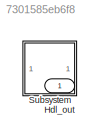
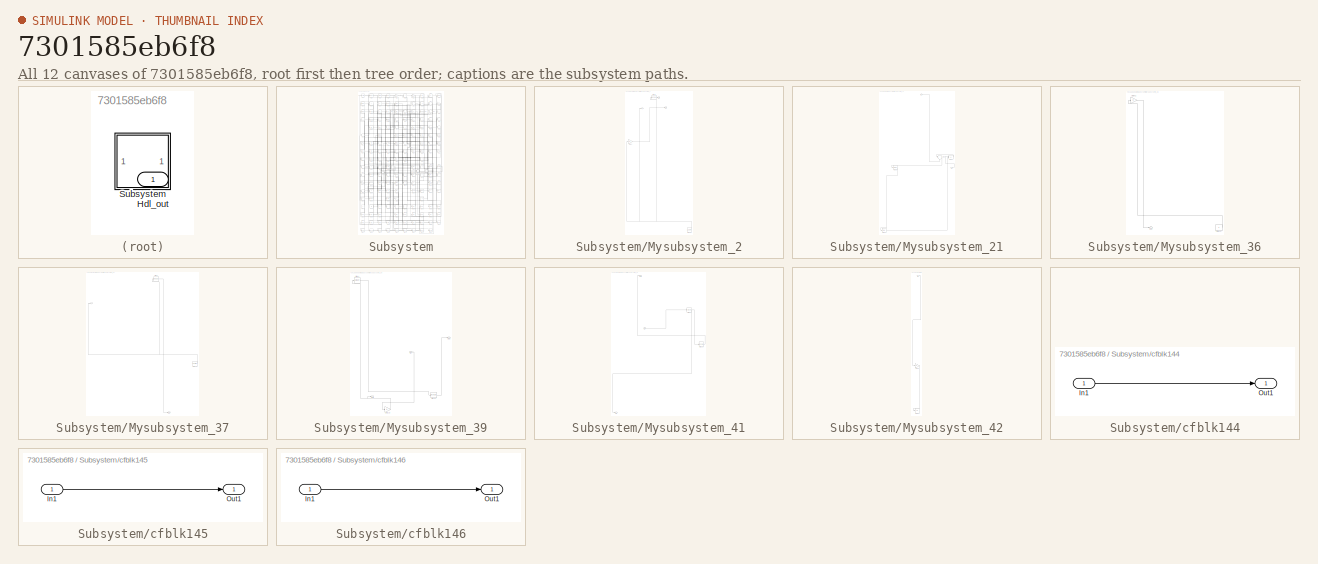
[diagram: thumbnail index - all 12 canvases of the model, root first then tree order]
MODEL slx_7301585eb6f8
KIND model
CONFIG AbsTol = auto
CONFIG EnableMultiTasking = off
CONFIG FixedStep = auto
CONFIG MaxStep = auto
CONFIG MinStep = auto
CONFIG RelTol = 1e-3
CONFIG SampleTimeConstraint = Unconstrained
CONFIG SolverName = VariableStepAuto
CONFIG StartTime = 0.0
CONFIG StopTime = 10.0
BLOCK [Outport] Hdl_out
  OutDataTypeStr = uint8
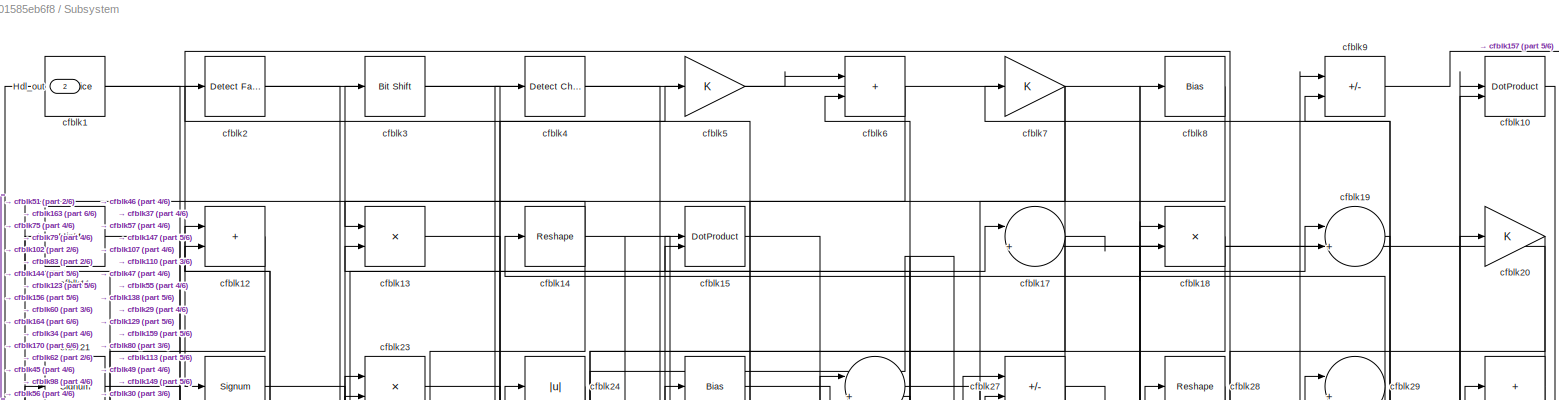
[diagram: Subsystem - part 1/6, full width, top band]
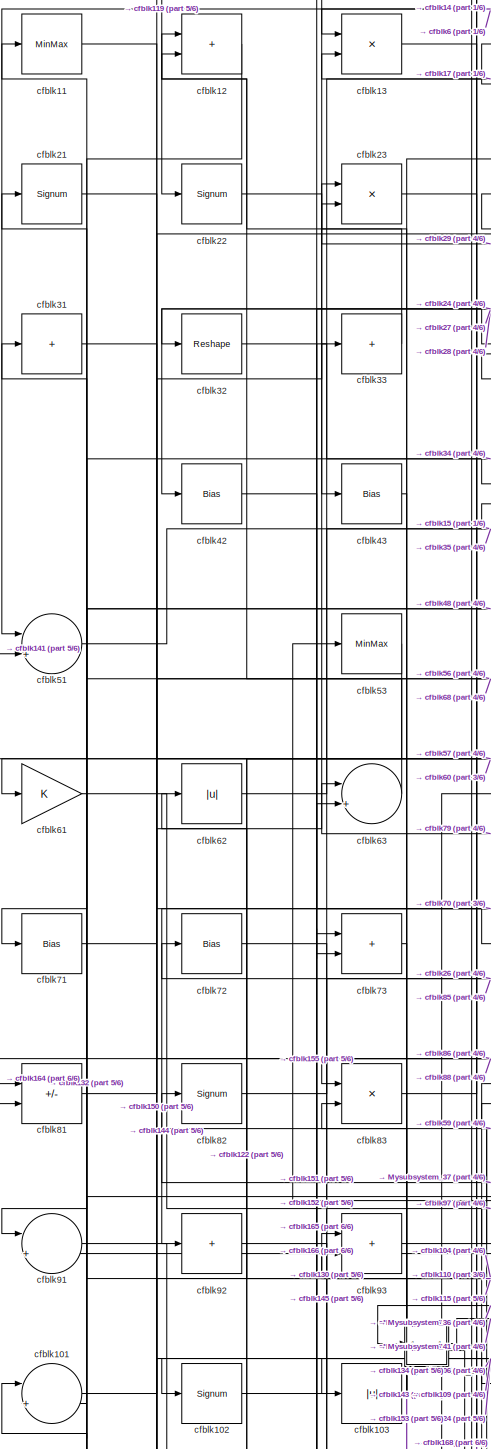
[diagram: Subsystem - part 2/6, middle left region]
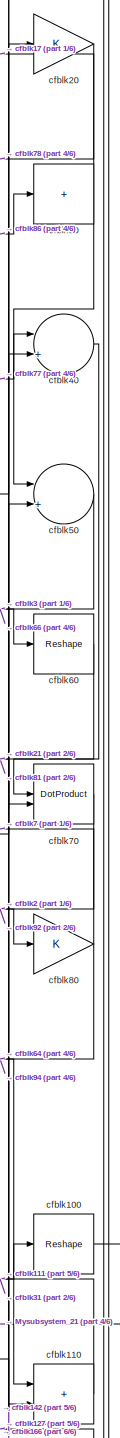
[diagram: Subsystem - part 3/6, middle right region]
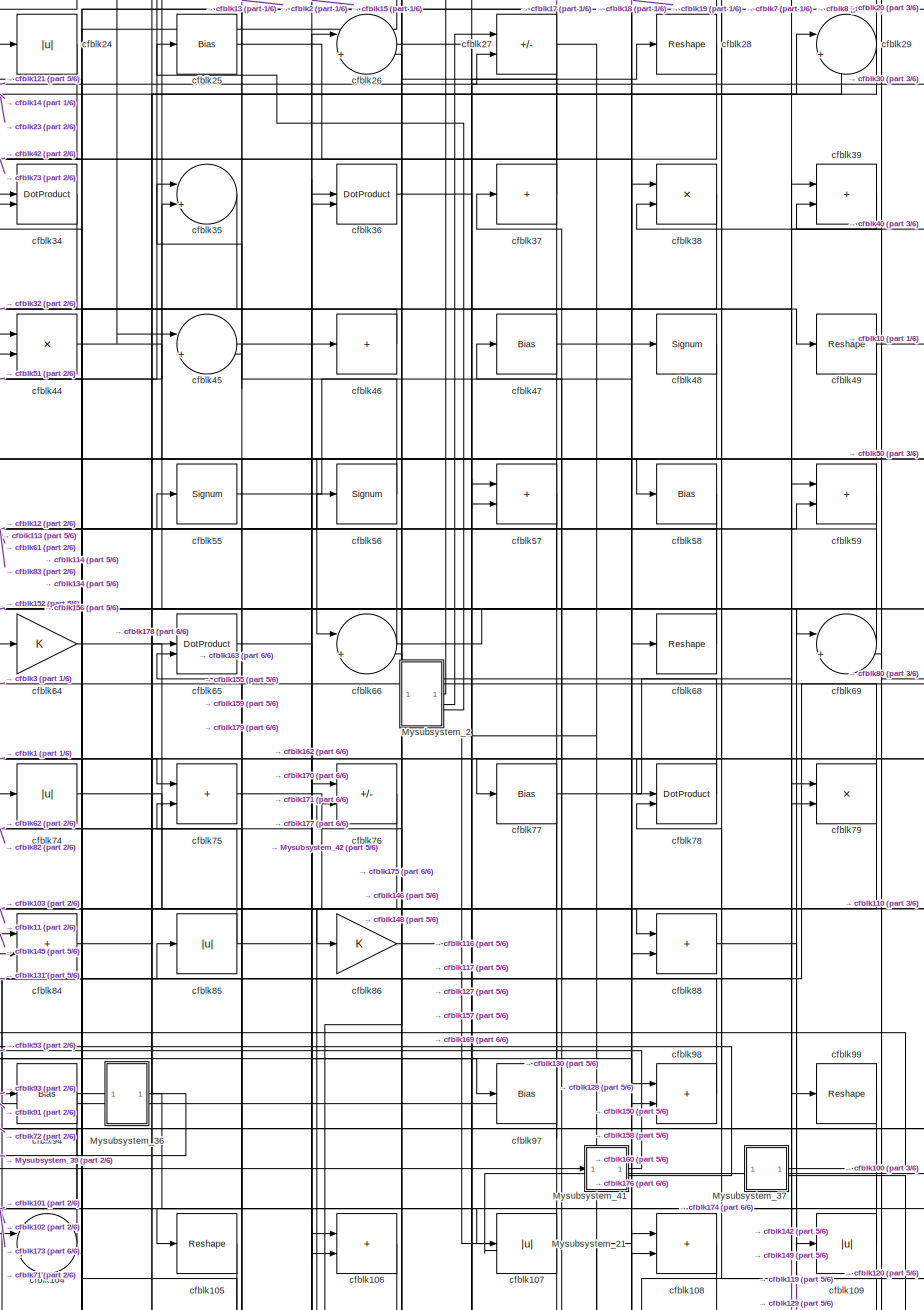
[diagram: Subsystem - part 4/6, central region]
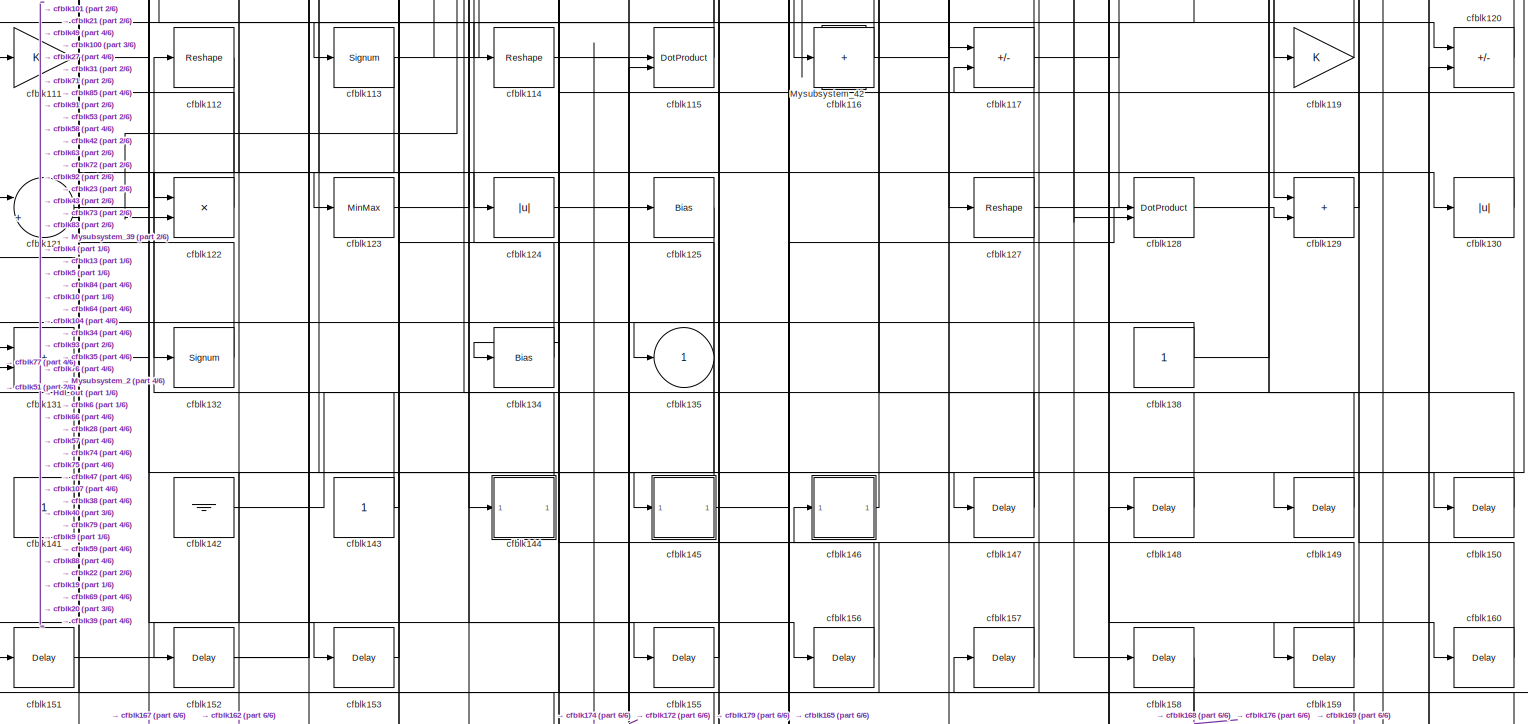
[diagram: Subsystem - part 5/6, full width, bottom band]
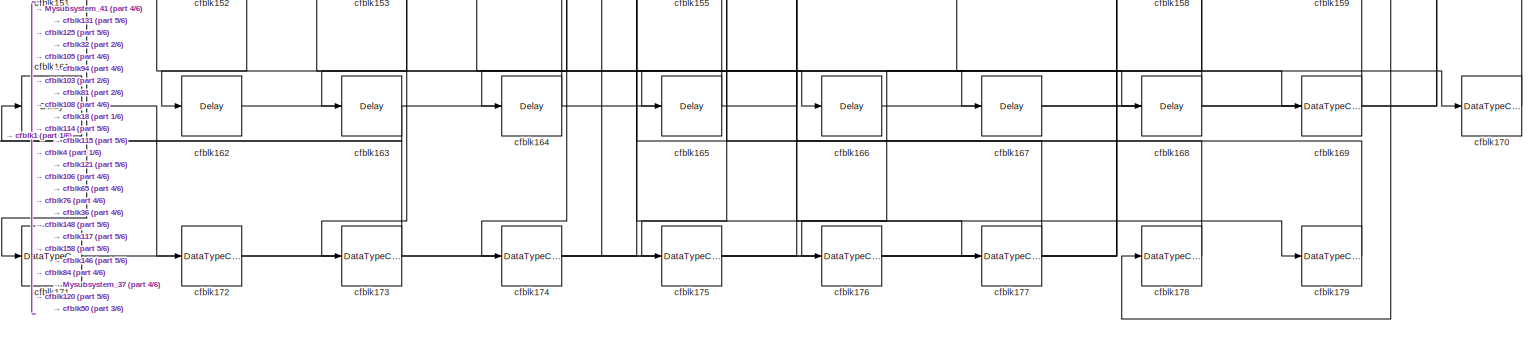
[diagram: Subsystem - part 6/6, full width, bottom band]
BLOCK [SubSystem] Subsystem
BLOCK [Outport] Subsystem/Hdl_out
  OutDataTypeStr = uint8
  Port = 2
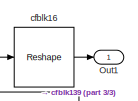
[diagram: Subsystem/Mysubsystem_2 - part 1/3, top center region]
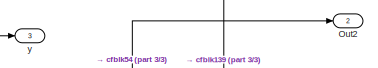
[diagram: Subsystem/Mysubsystem_2 - part 2/3, top center region]
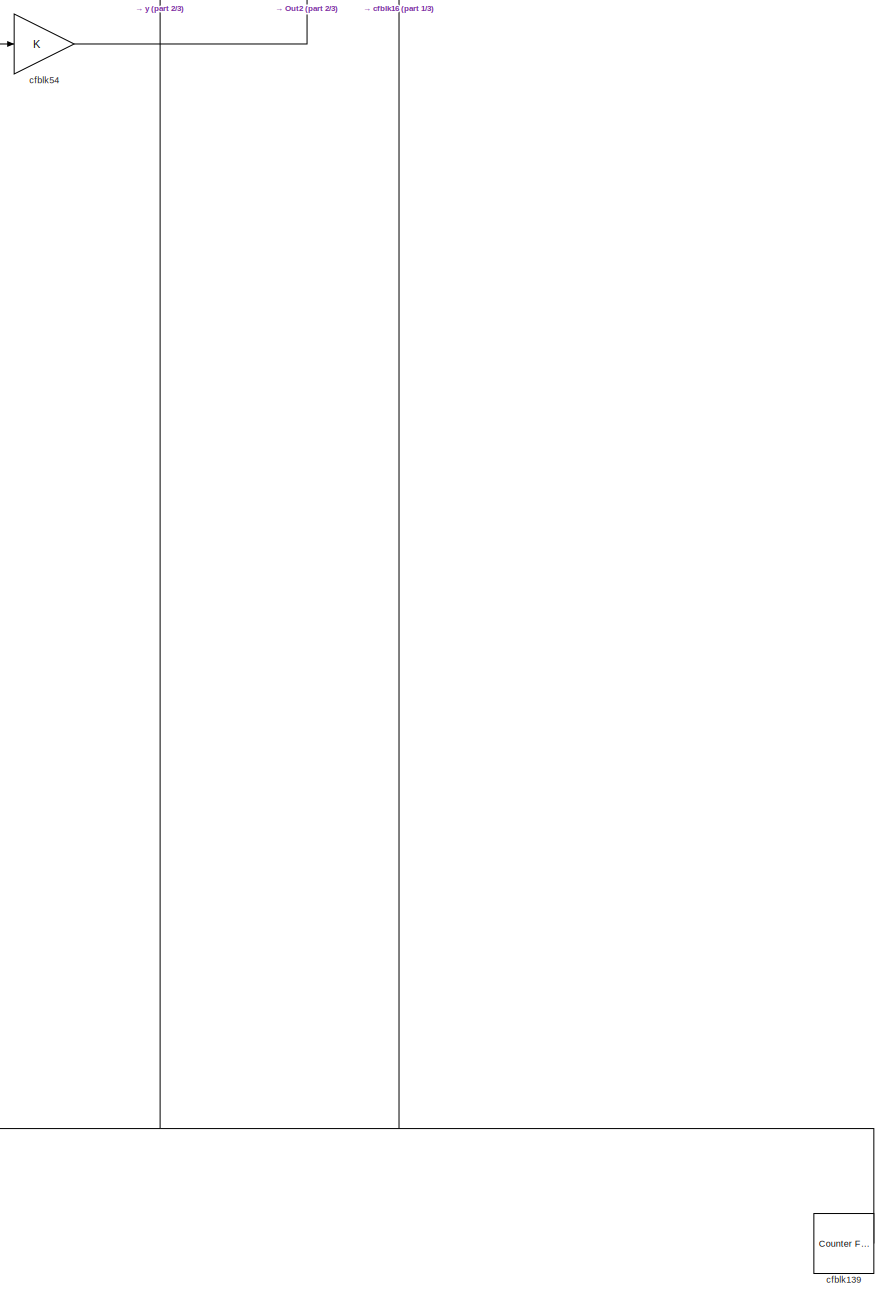
[diagram: Subsystem/Mysubsystem_2 - part 3/3, full width, middle band]
BLOCK [SubSystem] Subsystem/Mysubsystem_2
  RTWFcnName = Mysubsystem_2
  RTWFcnNameOpts = User specified
  RTWFileNameOpts = Use function name
  RTWSystemCode = Reusable function
  TreatAsAtomicUnit = on
BLOCK [Outport] Subsystem/Mysubsystem_2/Out1
BLOCK [Outport] Subsystem/Mysubsystem_2/Out2
  Port = 2
BLOCK [Reference] Subsystem/Mysubsystem_2/cfblk139  REF=hdlsllib/Sources/Counter
Free-Running
  SourceBlock = hdlsllib/Sources/Counter\nFree-Running
  SourceType = Counter Free-Running
BLOCK [Reshape] Subsystem/Mysubsystem_2/cfblk16
BLOCK [Gain] Subsystem/Mysubsystem_2/cfblk54
BLOCK [Outport] Subsystem/Mysubsystem_2/y
  Port = 3
BLOCK [SubSystem] Subsystem/Mysubsystem_21
  RTWFcnName = Mysubsystem_21
  RTWFcnNameOpts = User specified
  RTWFileNameOpts = Use function name
  RTWSystemCode = Reusable function
  TreatAsAtomicUnit = on
BLOCK [Inport] Subsystem/Mysubsystem_21/In1
BLOCK [Inport] Subsystem/Mysubsystem_21/In2
  Port = 2
BLOCK [Delay] Subsystem/Mysubsystem_21/cfblk154
  InputPortMap = u0
  SampleTime = 1
BLOCK [Sum] Subsystem/Mysubsystem_21/cfblk89
  Inputs = |++
BLOCK [Sum] Subsystem/Mysubsystem_21/cfblk90
  IconShape = rectangular
  Inputs = +-
BLOCK [MinMax] Subsystem/Mysubsystem_21/cfblk95
BLOCK [SubSystem] Subsystem/Mysubsystem_36
  RTWFcnName = Mysubsystem_36
  RTWFcnNameOpts = User specified
  RTWFileNameOpts = Use function name
  RTWSystemCode = Reusable function
  TreatAsAtomicUnit = on
BLOCK [Outport] Subsystem/Mysubsystem_36/Out1
BLOCK [Constant] Subsystem/Mysubsystem_36/cfblk137
  SampleTime = -1
BLOCK [Gain] Subsystem/Mysubsystem_36/cfblk52
BLOCK [SubSystem] Subsystem/Mysubsystem_37
  RTWFcnName = Mysubsystem_37
  RTWFcnNameOpts = User specified
  RTWFileNameOpts = Use function name
  RTWSystemCode = Reusable function
  TreatAsAtomicUnit = on
BLOCK [Outport] Subsystem/Mysubsystem_37/Out2
  Port = 2
BLOCK [Reference] Subsystem/Mysubsystem_37/cfblk140  REF=hdlsllib/Sources/Counter
Free-Running
  SourceBlock = hdlsllib/Sources/Counter\nFree-Running
  SourceType = Counter Free-Running
BLOCK [Reshape] Subsystem/Mysubsystem_37/cfblk67
BLOCK [Outport] Subsystem/Mysubsystem_37/y
BLOCK [SubSystem] Subsystem/Mysubsystem_39
  RTWFcnName = Mysubsystem_39
  RTWFcnNameOpts = User specified
  RTWFileNameOpts = Use function name
  RTWSystemCode = Reusable function
  TreatAsAtomicUnit = on
BLOCK [Inport] Subsystem/Mysubsystem_39/In1
BLOCK [Outport] Subsystem/Mysubsystem_39/Out1
BLOCK [Outport] Subsystem/Mysubsystem_39/Out2
  Port = 2
BLOCK [Reshape] Subsystem/Mysubsystem_39/cfblk126
BLOCK [Gain] Subsystem/Mysubsystem_39/cfblk133
BLOCK [Signum] Subsystem/Mysubsystem_39/cfblk41
BLOCK [SubSystem] Subsystem/Mysubsystem_41
  RTWFcnName = Mysubsystem_41
  RTWFcnNameOpts = User specified
  RTWFileNameOpts = Use function name
  RTWSystemCode = Reusable function
  TreatAsAtomicUnit = on
BLOCK [Inport] Subsystem/Mysubsystem_41/In1
BLOCK [Outport] Subsystem/Mysubsystem_41/Out1
BLOCK [Outport] Subsystem/Mysubsystem_41/Out2
  Port = 2
BLOCK [Reshape] Subsystem/Mysubsystem_41/cfblk118
BLOCK [Signum] Subsystem/Mysubsystem_41/cfblk87
BLOCK [SubSystem] Subsystem/Mysubsystem_42
  RTWFcnName = Mysubsystem_42
  RTWFcnNameOpts = User specified
  RTWFileNameOpts = Use function name
  RTWSystemCode = Reusable function
  TreatAsAtomicUnit = on
BLOCK [Inport] Subsystem/Mysubsystem_42/In1
BLOCK [Display] Subsystem/Mysubsystem_42/cfblk136
  Decimation = 1
BLOCK [Gain] Subsystem/Mysubsystem_42/cfblk96
BLOCK [Reference] Subsystem/cfblk1  REF=hdlsllib/Logic and Bit
Operations/Bit Slice
  SourceBlock = hdlsllib/Logic and Bit\nOperations/Bit Slice
  SourceType = Bit Slice
BLOCK [DotProduct] Subsystem/cfblk10
  OutDataTypeStr = uint8
BLOCK [Reshape] Subsystem/cfblk100
BLOCK [Sum] Subsystem/cfblk101
  Inputs = |++
  OutDataTypeStr = uint8
BLOCK [Signum] Subsystem/cfblk102
BLOCK [Abs] Subsystem/cfblk103
  OutDataTypeStr = uint8
  SaturateOnIntegerOverflow = off
BLOCK [Sum] Subsystem/cfblk104
  Inputs = |++
  OutDataTypeStr = uint8
BLOCK [Reshape] Subsystem/cfblk105
BLOCK [Sum] Subsystem/cfblk106
  IconShape = rectangular
  OutDataTypeStr = uint8
BLOCK [Abs] Subsystem/cfblk107
  OutDataTypeStr = uint8
  SaturateOnIntegerOverflow = off
BLOCK [Sum] Subsystem/cfblk108
  IconShape = rectangular
  OutDataTypeStr = uint8
BLOCK [Abs] Subsystem/cfblk109
  OutDataTypeStr = uint8
  SaturateOnIntegerOverflow = off
BLOCK [MinMax] Subsystem/cfblk11
  OutDataTypeStr = uint8
BLOCK [Sum] Subsystem/cfblk110
  IconShape = rectangular
  OutDataTypeStr = uint8
BLOCK [Gain] Subsystem/cfblk111
  OutDataTypeStr = uint8
BLOCK [Reshape] Subsystem/cfblk112
BLOCK [Signum] Subsystem/cfblk113
BLOCK [Reshape] Subsystem/cfblk114
BLOCK [DotProduct] Subsystem/cfblk115
  OutDataTypeStr = uint8
BLOCK [Sum] Subsystem/cfblk116
  IconShape = rectangular
  Inputs = +
  OutDataTypeStr = uint8
BLOCK [Sum] Subsystem/cfblk117
  IconShape = rectangular
  Inputs = +-
  OutDataTypeStr = uint8
BLOCK [Gain] Subsystem/cfblk119
  OutDataTypeStr = uint8
BLOCK [Sum] Subsystem/cfblk12
  IconShape = rectangular
  OutDataTypeStr = uint8
BLOCK [Sum] Subsystem/cfblk120
  IconShape = rectangular
  Inputs = +-
  OutDataTypeStr = uint8
BLOCK [Sum] Subsystem/cfblk121
  Inputs = |++
  OutDataTypeStr = uint8
BLOCK [Product] Subsystem/cfblk122
  Inputs = */
  OutDataTypeStr = uint8
  RndMeth = Zero
  SaturateOnIntegerOverflow = on
BLOCK [MinMax] Subsystem/cfblk123
  OutDataTypeStr = uint8
BLOCK [Abs] Subsystem/cfblk124
  OutDataTypeStr = uint8
  SaturateOnIntegerOverflow = off
BLOCK [Bias] Subsystem/cfblk125
  Bias = 0.0
  SaturateOnIntegerOverflow = off
BLOCK [Reshape] Subsystem/cfblk127
BLOCK [DotProduct] Subsystem/cfblk128
  OutDataTypeStr = uint8
BLOCK [Sum] Subsystem/cfblk129
  IconShape = rectangular
  OutDataTypeStr = uint8
BLOCK [Product] Subsystem/cfblk13
  Inputs = */
  OutDataTypeStr = uint8
  RndMeth = Zero
  SaturateOnIntegerOverflow = on
BLOCK [Abs] Subsystem/cfblk130
  OutDataTypeStr = uint8
  SaturateOnIntegerOverflow = off
BLOCK [Sum] Subsystem/cfblk131
  IconShape = rectangular
  OutDataTypeStr = uint8
BLOCK [Signum] Subsystem/cfblk132
BLOCK [Bias] Subsystem/cfblk134
  Bias = 0.0
  SaturateOnIntegerOverflow = off
BLOCK [Outport] Subsystem/cfblk135
  OutDataTypeStr = uint8
  VectorParamsAs1DForOutWhenUnconnected = off
BLOCK [Constant] Subsystem/cfblk138
  OutDataTypeStr = uint8
  SampleTime = -1
BLOCK [Reshape] Subsystem/cfblk14
BLOCK [Constant] Subsystem/cfblk141
  OutDataTypeStr = uint8
  SampleTime = -1
BLOCK [Ground] Subsystem/cfblk142
BLOCK [Constant] Subsystem/cfblk143
  OutDataTypeStr = uint8
  SampleTime = -1
BLOCK [SubSystem] Subsystem/cfblk144
  LibrarySourceBlock = hdlsllib/Ports &\nSubsystems/Subsystem
BLOCK [Inport] Subsystem/cfblk144/In1
BLOCK [Outport] Subsystem/cfblk144/Out1
BLOCK [SubSystem] Subsystem/cfblk145
  LibrarySourceBlock = hdlsllib/Ports &\nSubsystems/Subsystem
BLOCK [Inport] Subsystem/cfblk145/In1
BLOCK [Outport] Subsystem/cfblk145/Out1
BLOCK [SubSystem] Subsystem/cfblk146
  LibrarySourceBlock = hdlsllib/Ports &\nSubsystems/Subsystem
BLOCK [Inport] Subsystem/cfblk146/In1
BLOCK [Outport] Subsystem/cfblk146/Out1
BLOCK [Delay] Subsystem/cfblk147
  InputPortMap = u0
  SampleTime = 1
BLOCK [Delay] Subsystem/cfblk148
  InputPortMap = u0
  SampleTime = 1
BLOCK [Delay] Subsystem/cfblk149
  InputPortMap = u0
  SampleTime = 1
BLOCK [DotProduct] Subsystem/cfblk15
  OutDataTypeStr = uint8
BLOCK [Delay] Subsystem/cfblk150
  InputPortMap = u0
  SampleTime = 1
BLOCK [Delay] Subsystem/cfblk151
  InputPortMap = u0
  SampleTime = 1
BLOCK [Delay] Subsystem/cfblk152
  InputPortMap = u0
  SampleTime = 1
BLOCK [Delay] Subsystem/cfblk153
  InputPortMap = u0
  SampleTime = 1
BLOCK [Delay] Subsystem/cfblk155
  InputPortMap = u0
  SampleTime = 1
BLOCK [Delay] Subsystem/cfblk156
  InputPortMap = u0
  SampleTime = 1
BLOCK [Delay] Subsystem/cfblk157
  InputPortMap = u0
  SampleTime = 1
BLOCK [Delay] Subsystem/cfblk158
  InputPortMap = u0
  SampleTime = 1
BLOCK [Delay] Subsystem/cfblk159
  InputPortMap = u0
  SampleTime = 1
BLOCK [Delay] Subsystem/cfblk160
  InputPortMap = u0
  SampleTime = 1
BLOCK [Delay] Subsystem/cfblk161
  InputPortMap = u0
  SampleTime = 1
BLOCK [Delay] Subsystem/cfblk162
  InputPortMap = u0
  SampleTime = 1
BLOCK [Delay] Subsystem/cfblk163
  InputPortMap = u0
  SampleTime = 1
BLOCK [Delay] Subsystem/cfblk164
  InputPortMap = u0
  SampleTime = 1
BLOCK [Delay] Subsystem/cfblk165
  InputPortMap = u0
  SampleTime = 1
BLOCK [Delay] Subsystem/cfblk166
  InputPortMap = u0
  SampleTime = 1
BLOCK [Delay] Subsystem/cfblk167
  InputPortMap = u0
  SampleTime = 1
BLOCK [Delay] Subsystem/cfblk168
  InputPortMap = u0
  SampleTime = 1
BLOCK [DataTypeConversion] Subsystem/cfblk169
  OutDataTypeStr = uint8
  RndMeth = Floor
  SaturateOnIntegerOverflow = off
BLOCK [Sum] Subsystem/cfblk17
  Inputs = |++
  OutDataTypeStr = uint8
BLOCK [DataTypeConversion] Subsystem/cfblk170
  OutDataTypeStr = uint8
  RndMeth = Floor
  SaturateOnIntegerOverflow = off
BLOCK [DataTypeConversion] Subsystem/cfblk171
  OutDataTypeStr = uint8
  RndMeth = Floor
  SaturateOnIntegerOverflow = off
BLOCK [DataTypeConversion] Subsystem/cfblk172
  OutDataTypeStr = uint8
  RndMeth = Floor
  SaturateOnIntegerOverflow = off
BLOCK [DataTypeConversion] Subsystem/cfblk173
  OutDataTypeStr = uint8
  RndMeth = Floor
  SaturateOnIntegerOverflow = off
BLOCK [DataTypeConversion] Subsystem/cfblk174
  OutDataTypeStr = uint8
  RndMeth = Floor
  SaturateOnIntegerOverflow = off
BLOCK [DataTypeConversion] Subsystem/cfblk175
  OutDataTypeStr = uint8
  RndMeth = Floor
  SaturateOnIntegerOverflow = off
BLOCK [DataTypeConversion] Subsystem/cfblk176
  OutDataTypeStr = uint8
  RndMeth = Floor
  SaturateOnIntegerOverflow = off
BLOCK [DataTypeConversion] Subsystem/cfblk177
  OutDataTypeStr = uint8
  RndMeth = Floor
  SaturateOnIntegerOverflow = off
BLOCK [DataTypeConversion] Subsystem/cfblk178
  OutDataTypeStr = uint8
  RndMeth = Floor
  SaturateOnIntegerOverflow = off
BLOCK [DataTypeConversion] Subsystem/cfblk179
  OutDataTypeStr = uint8
  RndMeth = Floor
  SaturateOnIntegerOverflow = off
BLOCK [Product] Subsystem/cfblk18
  Inputs = */
  OutDataTypeStr = uint8
  RndMeth = Zero
  SaturateOnIntegerOverflow = on
BLOCK [Sum] Subsystem/cfblk19
  Inputs = |++
  OutDataTypeStr = uint8
BLOCK [Reference] Subsystem/cfblk2  REF=hdlsllib/Logic and Bit
Operations/Detect Fall
Negative
  SourceBlock = hdlsllib/Logic and Bit\nOperations/Detect Fall\nNegative
  SourceType = Detect Fall Negative
BLOCK [Gain] Subsystem/cfblk20
  OutDataTypeStr = uint8
BLOCK [Signum] Subsystem/cfblk21
BLOCK [Signum] Subsystem/cfblk22
BLOCK [Product] Subsystem/cfblk23
  Inputs = */
  OutDataTypeStr = uint8
  RndMeth = Zero
  SaturateOnIntegerOverflow = on
BLOCK [Abs] Subsystem/cfblk24
  OutDataTypeStr = uint8
  SaturateOnIntegerOverflow = off
BLOCK [Bias] Subsystem/cfblk25
  Bias = 0.0
  SaturateOnIntegerOverflow = off
BLOCK [Sum] Subsystem/cfblk26
  Inputs = |++
  OutDataTypeStr = uint8
BLOCK [Sum] Subsystem/cfblk27
  IconShape = rectangular
  Inputs = +-
  OutDataTypeStr = uint8
BLOCK [Reshape] Subsystem/cfblk28
BLOCK [Sum] Subsystem/cfblk29
  Inputs = |++
  OutDataTypeStr = uint8
BLOCK [Reference] Subsystem/cfblk3  REF=hdlsllib/Logic and Bit
Operations/Bit Shift
  SourceBlock = hdlsllib/Logic and Bit\nOperations/Bit Shift
  SourceType = Bit Shift
BLOCK [Sum] Subsystem/cfblk30
  IconShape = rectangular
  Inputs = +
  OutDataTypeStr = uint8
BLOCK [Sum] Subsystem/cfblk31
  IconShape = rectangular
  Inputs = +
  OutDataTypeStr = uint8
BLOCK [Reshape] Subsystem/cfblk32
BLOCK [Sum] Subsystem/cfblk33
  IconShape = rectangular
  Inputs = +
  OutDataTypeStr = uint8
BLOCK [DotProduct] Subsystem/cfblk34
  OutDataTypeStr = uint8
BLOCK [Sum] Subsystem/cfblk35
  Inputs = |++
  OutDataTypeStr = uint8
BLOCK [DotProduct] Subsystem/cfblk36
  OutDataTypeStr = uint8
BLOCK [Sum] Subsystem/cfblk37
  IconShape = rectangular
  Inputs = +
  OutDataTypeStr = uint8
BLOCK [Product] Subsystem/cfblk38
  Inputs = */
  OutDataTypeStr = uint8
  RndMeth = Zero
  SaturateOnIntegerOverflow = on
BLOCK [Sum] Subsystem/cfblk39
  IconShape = rectangular
  OutDataTypeStr = uint8
BLOCK [Reference] Subsystem/cfblk4  REF=simulink/Logic and Bit
Operations/Detect
Change
  LibrarySourceBlock = hdlsllib/Logic and Bit\nOperations/Detect\nChange
  SourceBlock = simulink/Logic and Bit\nOperations/Detect\nChange
  SourceType = Detect Change
BLOCK [Sum] Subsystem/cfblk40
  Inputs = |++
  OutDataTypeStr = uint8
BLOCK [Bias] Subsystem/cfblk42
  Bias = 0.0
  SaturateOnIntegerOverflow = off
BLOCK [Bias] Subsystem/cfblk43
  Bias = 0.0
  SaturateOnIntegerOverflow = off
BLOCK [Product] Subsystem/cfblk44
  Inputs = */
  OutDataTypeStr = uint8
  RndMeth = Zero
  SaturateOnIntegerOverflow = on
BLOCK [Sum] Subsystem/cfblk45
  Inputs = |++
  OutDataTypeStr = uint8
BLOCK [Sum] Subsystem/cfblk46
  IconShape = rectangular
  Inputs = +
  OutDataTypeStr = uint8
BLOCK [Bias] Subsystem/cfblk47
  Bias = 0.0
  SaturateOnIntegerOverflow = off
BLOCK [Signum] Subsystem/cfblk48
BLOCK [Reshape] Subsystem/cfblk49
BLOCK [Gain] Subsystem/cfblk5
  OutDataTypeStr = uint8
BLOCK [Sum] Subsystem/cfblk50
  Inputs = |++
  OutDataTypeStr = uint8
BLOCK [Sum] Subsystem/cfblk51
  Inputs = |++
  OutDataTypeStr = uint8
BLOCK [MinMax] Subsystem/cfblk53
  OutDataTypeStr = uint8
BLOCK [Signum] Subsystem/cfblk55
BLOCK [Signum] Subsystem/cfblk56
BLOCK [Sum] Subsystem/cfblk57
  IconShape = rectangular
  OutDataTypeStr = uint8
BLOCK [Bias] Subsystem/cfblk58
  Bias = 0.0
  SaturateOnIntegerOverflow = off
BLOCK [Sum] Subsystem/cfblk59
  IconShape = rectangular
  OutDataTypeStr = uint8
BLOCK [Sum] Subsystem/cfblk6
  IconShape = rectangular
  OutDataTypeStr = uint8
BLOCK [Reshape] Subsystem/cfblk60
BLOCK [Gain] Subsystem/cfblk61
  OutDataTypeStr = uint8
BLOCK [Abs] Subsystem/cfblk62
  OutDataTypeStr = uint8
  SaturateOnIntegerOverflow = off
BLOCK [Sum] Subsystem/cfblk63
  Inputs = |++
  OutDataTypeStr = uint8
BLOCK [Gain] Subsystem/cfblk64
  OutDataTypeStr = uint8
BLOCK [DotProduct] Subsystem/cfblk65
  OutDataTypeStr = uint8
BLOCK [Sum] Subsystem/cfblk66
  Inputs = |++
  OutDataTypeStr = uint8
BLOCK [Reshape] Subsystem/cfblk68
BLOCK [Sum] Subsystem/cfblk69
  Inputs = |++
  OutDataTypeStr = uint8
BLOCK [Gain] Subsystem/cfblk7
  OutDataTypeStr = uint8
BLOCK [DotProduct] Subsystem/cfblk70
  OutDataTypeStr = uint8
BLOCK [Bias] Subsystem/cfblk71
  Bias = 0.0
  SaturateOnIntegerOverflow = off
BLOCK [Bias] Subsystem/cfblk72
  Bias = 0.0
  SaturateOnIntegerOverflow = off
BLOCK [Sum] Subsystem/cfblk73
  IconShape = rectangular
  OutDataTypeStr = uint8
BLOCK [Abs] Subsystem/cfblk74
  OutDataTypeStr = uint8
  SaturateOnIntegerOverflow = off
BLOCK [Sum] Subsystem/cfblk75
  IconShape = rectangular
  OutDataTypeStr = uint8
BLOCK [Sum] Subsystem/cfblk76
  IconShape = rectangular
  Inputs = +-
  OutDataTypeStr = uint8
BLOCK [Bias] Subsystem/cfblk77
  Bias = 0.0
  SaturateOnIntegerOverflow = off
BLOCK [DotProduct] Subsystem/cfblk78
  OutDataTypeStr = uint8
BLOCK [Product] Subsystem/cfblk79
  Inputs = */
  OutDataTypeStr = uint8
  RndMeth = Zero
  SaturateOnIntegerOverflow = on
BLOCK [Bias] Subsystem/cfblk8
  Bias = 0.0
  SaturateOnIntegerOverflow = off
BLOCK [Gain] Subsystem/cfblk80
  OutDataTypeStr = uint8
BLOCK [Sum] Subsystem/cfblk81
  IconShape = rectangular
  Inputs = +-
  OutDataTypeStr = uint8
BLOCK [Signum] Subsystem/cfblk82
BLOCK [Product] Subsystem/cfblk83
  Inputs = */
  OutDataTypeStr = uint8
  RndMeth = Zero
  SaturateOnIntegerOverflow = on
BLOCK [Sum] Subsystem/cfblk84
  IconShape = rectangular
  OutDataTypeStr = uint8
BLOCK [Abs] Subsystem/cfblk85
  OutDataTypeStr = uint8
  SaturateOnIntegerOverflow = off
BLOCK [Gain] Subsystem/cfblk86
  OutDataTypeStr = uint8
BLOCK [Sum] Subsystem/cfblk88
  IconShape = rectangular
  OutDataTypeStr = uint8
BLOCK [Sum] Subsystem/cfblk9
  IconShape = rectangular
  Inputs = +-
  OutDataTypeStr = uint8
BLOCK [Sum] Subsystem/cfblk91
  Inputs = |++
  OutDataTypeStr = uint8
BLOCK [Sum] Subsystem/cfblk92
  IconShape = rectangular
  Inputs = +
  OutDataTypeStr = uint8
BLOCK [Sum] Subsystem/cfblk93
  IconShape = rectangular
  OutDataTypeStr = uint8
BLOCK [Bias] Subsystem/cfblk94
  Bias = 0.0
  SaturateOnIntegerOverflow = off
BLOCK [Bias] Subsystem/cfblk97
  Bias = 0.0
  SaturateOnIntegerOverflow = off
BLOCK [Sum] Subsystem/cfblk98
  IconShape = rectangular
  OutDataTypeStr = uint8
BLOCK [Reshape] Subsystem/cfblk99
NET Subsystem/Mysubsystem_2/cfblk139:1 -> Subsystem/Mysubsystem_2/cfblk16:1, Subsystem/Mysubsystem_2/cfblk54:1, Subsystem/Mysubsystem_2/y:1
LINE Subsystem/Mysubsystem_2/cfblk16:1 -> Subsystem/Mysubsystem_2/Out1:1
LINE Subsystem/Mysubsystem_2/cfblk54:1 -> Subsystem/Mysubsystem_2/Out2:1
LINE Subsystem/Mysubsystem_21/In1:1 -> Subsystem/Mysubsystem_21/cfblk89:2
LINE Subsystem/Mysubsystem_21/In2:1 -> Subsystem/Mysubsystem_21/cfblk90:1
LINE Subsystem/Mysubsystem_21/cfblk154:1 -> Subsystem/Mysubsystem_21/cfblk90:2
LINE Subsystem/Mysubsystem_21/cfblk89:1 -> Subsystem/Mysubsystem_21/cfblk95:1
LINE Subsystem/Mysubsystem_21/cfblk90:1 -> Subsystem/Mysubsystem_21/cfblk89:1
LINE Subsystem/Mysubsystem_21/cfblk95:1 -> Subsystem/Mysubsystem_21/cfblk154:1
NET Subsystem/Mysubsystem_2:1 -> Subsystem/Mysubsystem_42:1, Subsystem/cfblk134:1
LINE Subsystem/Mysubsystem_2:2 -> Subsystem/cfblk27:1
LINE Subsystem/Mysubsystem_2:3 -> Subsystem/cfblk25:1
LINE Subsystem/Mysubsystem_36/cfblk137:1 -> Subsystem/Mysubsystem_36/cfblk52:1
LINE Subsystem/Mysubsystem_36/cfblk52:1 -> Subsystem/Mysubsystem_36/Out1:1
LINE Subsystem/Mysubsystem_36:1 -> Subsystem/Mysubsystem_39:1
NET Subsystem/Mysubsystem_37/cfblk140:1 -> Subsystem/Mysubsystem_37/cfblk67:1, Subsystem/Mysubsystem_37/y:1
LINE Subsystem/Mysubsystem_37/cfblk67:1 -> Subsystem/Mysubsystem_37/Out2:1
LINE Subsystem/Mysubsystem_37:1 -> Subsystem/cfblk82:1
LINE Subsystem/Mysubsystem_37:2 -> Subsystem/cfblk178:1
LINE Subsystem/Mysubsystem_39/In1:1 -> Subsystem/Mysubsystem_39/cfblk133:1
LINE Subsystem/Mysubsystem_39/cfblk126:1 -> Subsystem/Mysubsystem_39/Out1:1
NET Subsystem/Mysubsystem_39/cfblk133:1 -> Subsystem/Mysubsystem_39/Out2:1, Subsystem/Mysubsystem_39/cfblk41:1
LINE Subsystem/Mysubsystem_39/cfblk41:1 -> Subsystem/Mysubsystem_39/cfblk126:1
LINE Subsystem/Mysubsystem_39:1 -> Subsystem/Mysubsystem_41:1
LINE Subsystem/Mysubsystem_39:2 -> Subsystem/cfblk122:2
LINE Subsystem/Mysubsystem_41/In1:1 -> Subsystem/Mysubsystem_41/cfblk87:1
LINE Subsystem/Mysubsystem_41/cfblk118:1 -> Subsystem/Mysubsystem_41/Out1:1
NET Subsystem/Mysubsystem_41/cfblk87:1 -> Subsystem/Mysubsystem_41/Out2:1, Subsystem/Mysubsystem_41/cfblk118:1
LINE Subsystem/Mysubsystem_41:1 -> Subsystem/cfblk53:1
LINE Subsystem/Mysubsystem_41:2 -> Subsystem/cfblk171:1
LINE Subsystem/Mysubsystem_42/In1:1 -> Subsystem/Mysubsystem_42/cfblk96:1
LINE Subsystem/Mysubsystem_42/cfblk96:1 -> Subsystem/Mysubsystem_42/cfblk136:1
LINE Subsystem/cfblk100:1 -> Subsystem/Mysubsystem_21:2
LINE Subsystem/cfblk101:1 -> Subsystem/cfblk109:1
LINE Subsystem/cfblk102:1 -> Subsystem/cfblk17:1
LINE Subsystem/cfblk103:1 -> Subsystem/cfblk168:1
LINE Subsystem/cfblk104:1 -> Subsystem/cfblk72:1
LINE Subsystem/cfblk105:1 -> Subsystem/cfblk163:1
LINE Subsystem/cfblk106:1 -> Subsystem/cfblk175:1
NET Subsystem/cfblk107:1 -> Subsystem/cfblk158:1, Subsystem/cfblk160:1, Subsystem/cfblk19:1, Subsystem/cfblk19:2
LINE Subsystem/cfblk108:1 -> Subsystem/cfblk174:1
LINE Subsystem/cfblk109:1 -> Subsystem/cfblk78:2
LINE Subsystem/cfblk10:1 -> Subsystem/cfblk149:1
LINE Subsystem/cfblk110:1 -> Subsystem/cfblk31:1
NET Subsystem/cfblk111:1 -> Subsystem/cfblk100:1, Subsystem/cfblk153:1
LINE Subsystem/cfblk112:1 -> Subsystem/cfblk132:1
NET Subsystem/cfblk113:1 -> Subsystem/cfblk10:1, Subsystem/cfblk151:1, Subsystem/cfblk64:1
LINE Subsystem/cfblk114:1 -> Subsystem/cfblk179:1
LINE Subsystem/cfblk115:1 -> Subsystem/cfblk93:1
NET Subsystem/cfblk116:1 -> Subsystem/cfblk111:1, Subsystem/cfblk28:1
LINE Subsystem/cfblk117:1 -> Subsystem/cfblk120:1
LINE Subsystem/cfblk119:1 -> Subsystem/cfblk22:1
LINE Subsystem/cfblk11:1 -> Subsystem/cfblk86:1
LINE Subsystem/cfblk120:1 -> Subsystem/cfblk39:2
LINE Subsystem/cfblk121:1 -> Subsystem/cfblk27:2
LINE Subsystem/cfblk122:1 -> Subsystem/cfblk101:1
LINE Subsystem/cfblk123:1 -> Subsystem/cfblk5:1
LINE Subsystem/cfblk124:1 -> Subsystem/cfblk147:1
NET Subsystem/cfblk125:1 -> Subsystem/cfblk135:1, Subsystem/cfblk162:1
NET Subsystem/cfblk127:1 -> Subsystem/cfblk40:2, Subsystem/cfblk79:2
LINE Subsystem/cfblk128:1 -> Subsystem/cfblk129:2
LINE Subsystem/cfblk129:1 -> Subsystem/cfblk9:2
LINE Subsystem/cfblk12:1 -> Subsystem/cfblk101:2
NET Subsystem/cfblk130:1 -> Subsystem/cfblk34:2, Subsystem/cfblk47:1
NET Subsystem/cfblk131:1 -> Subsystem/cfblk167:1, Subsystem/cfblk85:1
LINE Subsystem/cfblk132:1 -> Subsystem/cfblk21:1
LINE Subsystem/cfblk134:1 -> Subsystem/cfblk23:1
NET Subsystem/cfblk138:1 -> Subsystem/cfblk131:1, Subsystem/cfblk9:1
LINE Subsystem/cfblk13:1 -> Subsystem/cfblk156:1
LINE Subsystem/cfblk141:1 -> Subsystem/cfblk51:2
NET Subsystem/cfblk142:1 -> Subsystem/cfblk20:1, Subsystem/cfblk79:1
NET Subsystem/cfblk143:1 -> Subsystem/cfblk112:1, Subsystem/cfblk83:2
LINE Subsystem/cfblk144/In1:1 -> Subsystem/cfblk144/Out1:1
LINE Subsystem/cfblk144:1 -> Subsystem/cfblk4:1
LINE Subsystem/cfblk145/In1:1 -> Subsystem/cfblk145/Out1:1
NET Subsystem/cfblk145:1 -> Subsystem/cfblk128:1, Subsystem/cfblk84:1
LINE Subsystem/cfblk146/In1:1 -> Subsystem/cfblk146/Out1:1
LINE Subsystem/cfblk146:1 -> Subsystem/cfblk76:2
NET Subsystem/cfblk147:1 -> Subsystem/Hdl_out:1, Subsystem/cfblk6:2
LINE Subsystem/cfblk148:1 -> Subsystem/cfblk66:2
LINE Subsystem/cfblk149:1 -> Subsystem/cfblk39:1
NET Subsystem/cfblk14:1 -> Subsystem/cfblk13:1, Subsystem/cfblk45:1, Subsystem/cfblk83:1, Subsystem/cfblk98:1
LINE Subsystem/cfblk150:1 -> Subsystem/cfblk38:1
LINE Subsystem/cfblk151:1 -> Subsystem/cfblk63:2
LINE Subsystem/cfblk152:1 -> Subsystem/cfblk73:1
LINE Subsystem/cfblk153:1 -> Subsystem/cfblk93:2
LINE Subsystem/cfblk155:1 -> Subsystem/cfblk75:2
LINE Subsystem/cfblk156:1 -> Subsystem/cfblk104:2
LINE Subsystem/cfblk157:1 -> Subsystem/cfblk57:1
LINE Subsystem/cfblk158:1 -> Subsystem/cfblk176:1
LINE Subsystem/cfblk159:1 -> Subsystem/cfblk35:1
LINE Subsystem/cfblk15:1 -> Subsystem/cfblk46:1
LINE Subsystem/cfblk160:1 -> Subsystem/cfblk69:2
LINE Subsystem/cfblk161:1 -> Subsystem/cfblk172:1
LINE Subsystem/cfblk162:1 -> Subsystem/cfblk106:1
LINE Subsystem/cfblk163:1 -> Subsystem/cfblk1:1
LINE Subsystem/cfblk164:1 -> Subsystem/cfblk81:1
LINE Subsystem/cfblk165:1 -> Subsystem/cfblk121:1
LINE Subsystem/cfblk166:1 -> Subsystem/cfblk50:2
LINE Subsystem/cfblk167:1 -> Subsystem/cfblk120:2
LINE Subsystem/cfblk168:1 -> Subsystem/cfblk117:2
NET Subsystem/cfblk169:1 -> Subsystem/cfblk146:1, Subsystem/cfblk84:2
LINE Subsystem/cfblk170:1 -> Subsystem/cfblk36:1
LINE Subsystem/cfblk171:1 -> Subsystem/cfblk36:2
LINE Subsystem/cfblk172:1 -> Subsystem/cfblk115:2
LINE Subsystem/cfblk173:1 -> Subsystem/cfblk161:1
NET Subsystem/cfblk174:1 -> Subsystem/cfblk115:1, Subsystem/cfblk125:1, Subsystem/cfblk148:1
LINE Subsystem/cfblk175:1 -> Subsystem/cfblk108:1
LINE Subsystem/cfblk176:1 -> Subsystem/cfblk108:2
LINE Subsystem/cfblk177:1 -> Subsystem/cfblk76:1
LINE Subsystem/cfblk178:1 -> Subsystem/cfblk65:1
LINE Subsystem/cfblk179:1 -> Subsystem/cfblk65:2
NET Subsystem/cfblk17:1 -> Subsystem/cfblk18:2, Subsystem/cfblk34:1
LINE Subsystem/cfblk18:1 -> Subsystem/cfblk164:1
LINE Subsystem/cfblk19:1 -> Subsystem/cfblk159:1
LINE Subsystem/cfblk1:1 -> Subsystem/cfblk75:1
LINE Subsystem/cfblk20:1 -> Subsystem/cfblk78:1
LINE Subsystem/cfblk21:1 -> Subsystem/cfblk70:2
LINE Subsystem/cfblk22:1 -> Subsystem/cfblk43:1
LINE Subsystem/cfblk23:1 -> Subsystem/cfblk88:2
LINE Subsystem/cfblk24:1 -> Subsystem/cfblk73:2
LINE Subsystem/cfblk25:1 -> Subsystem/cfblk68:1
LINE Subsystem/cfblk26:1 -> Subsystem/cfblk49:1
NET Subsystem/cfblk27:1 -> Subsystem/Mysubsystem_21:1, Subsystem/cfblk128:2, Subsystem/cfblk32:1
LINE Subsystem/cfblk28:1 -> Subsystem/cfblk42:1
NET Subsystem/cfblk29:1 -> Subsystem/cfblk14:1, Subsystem/cfblk23:2
LINE Subsystem/cfblk2:1 -> Subsystem/cfblk80:1
NET Subsystem/cfblk30:1 -> Subsystem/cfblk17:2, Subsystem/cfblk50:1
LINE Subsystem/cfblk31:1 -> Subsystem/cfblk150:1
NET Subsystem/cfblk32:1 -> Subsystem/cfblk165:1, Subsystem/cfblk166:1, Subsystem/cfblk99:1
LINE Subsystem/cfblk33:1 -> Subsystem/cfblk12:2
LINE Subsystem/cfblk34:1 -> Subsystem/cfblk91:1
LINE Subsystem/cfblk35:1 -> Subsystem/cfblk104:1
LINE Subsystem/cfblk36:1 -> Subsystem/cfblk169:1
LINE Subsystem/cfblk37:1 -> Subsystem/cfblk15:2
LINE Subsystem/cfblk38:1 -> Subsystem/cfblk74:1
LINE Subsystem/cfblk39:1 -> Subsystem/cfblk38:2
LINE Subsystem/cfblk3:1 -> Subsystem/cfblk60:1
LINE Subsystem/cfblk40:1 -> Subsystem/cfblk70:1
LINE Subsystem/cfblk42:1 -> Subsystem/cfblk155:1
LINE Subsystem/cfblk43:1 -> Subsystem/cfblk113:1
LINE Subsystem/cfblk44:1 -> Subsystem/cfblk58:1
LINE Subsystem/cfblk45:1 -> Subsystem/cfblk88:1
LINE Subsystem/cfblk46:1 -> Subsystem/cfblk44:1
LINE Subsystem/cfblk47:1 -> Subsystem/cfblk8:1
LINE Subsystem/cfblk48:1 -> Subsystem/cfblk61:1
NET Subsystem/cfblk49:1 -> Subsystem/cfblk105:1, Subsystem/cfblk10:2, Subsystem/cfblk121:2
LINE Subsystem/cfblk4:1 -> Subsystem/cfblk170:1
NET Subsystem/cfblk50:1 -> Subsystem/cfblk66:1, Subsystem/cfblk77:1
LINE Subsystem/cfblk51:1 -> Subsystem/cfblk35:2
LINE Subsystem/cfblk53:1 -> Subsystem/cfblk122:1
LINE Subsystem/cfblk55:1 -> Subsystem/cfblk18:1
NET Subsystem/cfblk56:1 -> Subsystem/cfblk13:2, Subsystem/cfblk2:1
LINE Subsystem/cfblk57:1 -> Subsystem/cfblk71:1
LINE Subsystem/cfblk58:1 -> Subsystem/cfblk152:1
LINE Subsystem/cfblk59:1 -> Subsystem/cfblk119:1
LINE Subsystem/cfblk5:1 -> Subsystem/cfblk6:1
LINE Subsystem/cfblk60:1 -> Subsystem/cfblk81:2
NET Subsystem/cfblk61:1 -> Subsystem/cfblk56:1, Subsystem/cfblk97:1
LINE Subsystem/cfblk62:1 -> Subsystem/cfblk15:1
LINE Subsystem/cfblk63:1 -> Subsystem/cfblk11:1
LINE Subsystem/cfblk64:1 -> Subsystem/cfblk110:1
LINE Subsystem/cfblk65:1 -> Subsystem/cfblk177:1
NET Subsystem/cfblk66:1 -> Subsystem/cfblk55:1, Subsystem/cfblk69:1
LINE Subsystem/cfblk68:1 -> Subsystem/cfblk12:1
LINE Subsystem/cfblk69:1 -> Subsystem/cfblk24:1
LINE Subsystem/cfblk6:1 -> Subsystem/cfblk51:1
LINE Subsystem/cfblk70:1 -> Subsystem/cfblk92:1
NET Subsystem/cfblk71:1 -> Subsystem/cfblk106:2, Subsystem/cfblk124:1, Subsystem/cfblk33:1
LINE Subsystem/cfblk72:1 -> Subsystem/cfblk130:1
LINE Subsystem/cfblk73:1 -> Subsystem/cfblk123:1
LINE Subsystem/cfblk74:1 -> Subsystem/cfblk127:1
LINE Subsystem/cfblk75:1 -> Subsystem/cfblk117:1
LINE Subsystem/cfblk76:1 -> Subsystem/cfblk116:1
NET Subsystem/cfblk77:1 -> Subsystem/cfblk131:2, Subsystem/cfblk40:1
LINE Subsystem/cfblk78:1 -> Subsystem/cfblk26:2
NET Subsystem/cfblk79:1 -> Subsystem/cfblk103:1, Subsystem/cfblk3:1
NET Subsystem/cfblk7:1 -> Subsystem/cfblk110:2, Subsystem/cfblk45:2
NET Subsystem/cfblk80:1 -> Subsystem/cfblk7:1, Subsystem/cfblk94:1
LINE Subsystem/cfblk81:1 -> Subsystem/cfblk63:1
LINE Subsystem/cfblk82:1 -> Subsystem/cfblk26:1
LINE Subsystem/cfblk83:1 -> Subsystem/cfblk59:2
NET Subsystem/cfblk84:1 -> Subsystem/cfblk114:1, Subsystem/cfblk29:2
NET Subsystem/cfblk85:1 -> Subsystem/cfblk62:1, Subsystem/cfblk98:2
LINE Subsystem/cfblk86:1 -> Subsystem/cfblk30:1
LINE Subsystem/cfblk88:1 -> Subsystem/cfblk129:1
LINE Subsystem/cfblk8:1 -> Subsystem/cfblk57:2
LINE Subsystem/cfblk91:1 -> Subsystem/cfblk144:1
LINE Subsystem/cfblk92:1 -> Subsystem/cfblk145:1
NET Subsystem/cfblk93:1 -> Subsystem/cfblk48:1, Subsystem/cfblk59:1
NET Subsystem/cfblk94:1 -> Subsystem/cfblk107:1, Subsystem/cfblk173:1, Subsystem/cfblk29:1
NET Subsystem/cfblk97:1 -> Subsystem/cfblk44:2, Subsystem/cfblk91:2
LINE Subsystem/cfblk98:1 -> Subsystem/cfblk37:1
LINE Subsystem/cfblk99:1 -> Subsystem/cfblk102:1
LINE Subsystem/cfblk9:1 -> Subsystem/cfblk157:1
note: NET lines group one-source signal fan-out (src -> all destinations, sorted); 1:1 wires keep LINE
